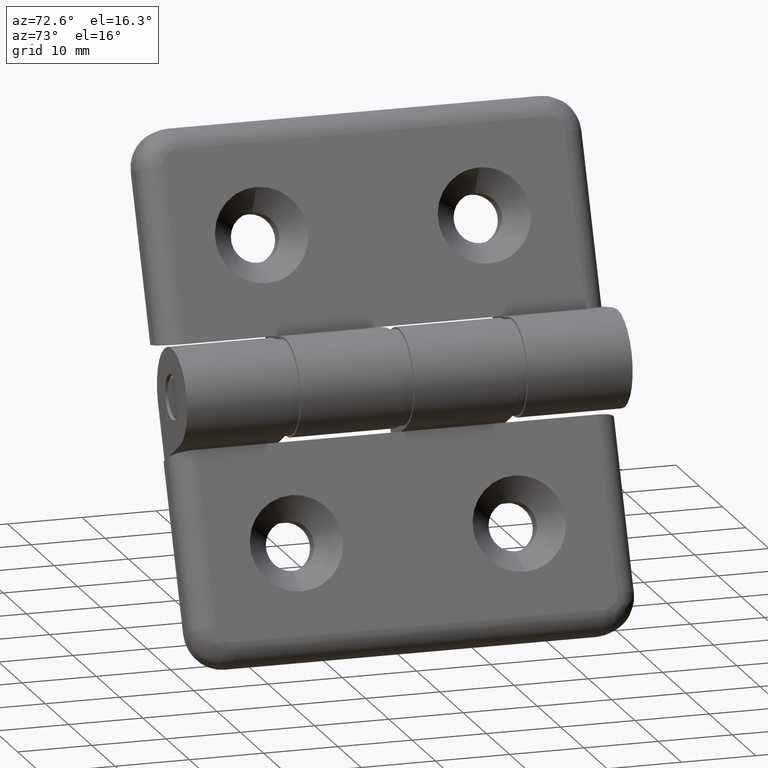
[diagram: clean part render]
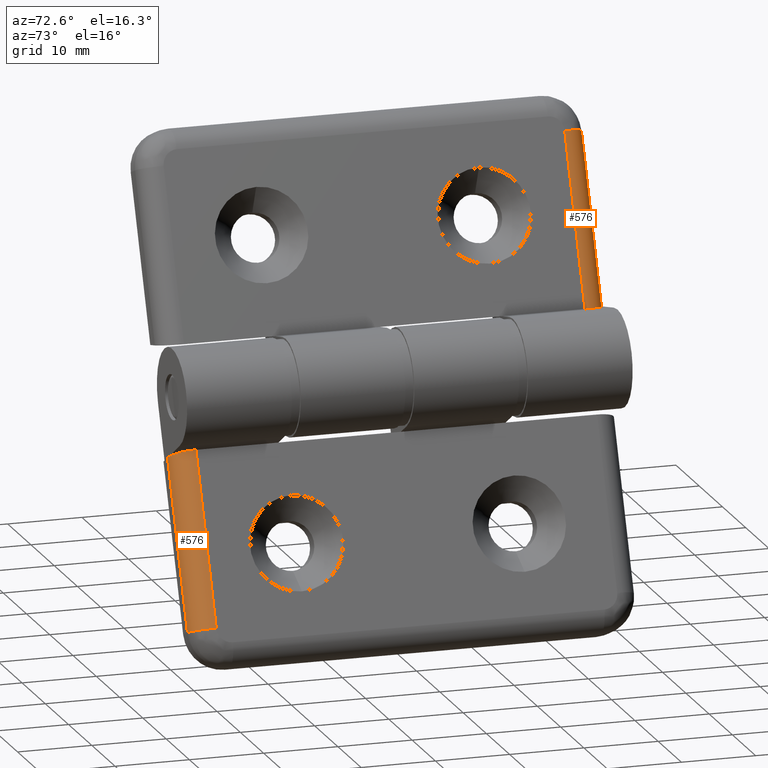
[diagram: same view with one multi-face feature highlighted, each face labeled with its STEP entity id]
A machine part, auxiliary view. The highlighted faces form ONE feature: a constant-radius fillet chain: 2 tangent blend faces with common blend radius 3 mm. The faces share edges in the B-rep.
Their STEP definitions:
[1] entity #576 (Cylinder):
#68=ELLIPSE('',#625,3.03076923076923,3.);
#70=LINE('',#908,#107);
#71=LINE('',#911,#108);
#107=VECTOR('',#717,23.1461538461538);
#108=VECTOR('',#720,22.7153846153846);
#146=CYLINDRICAL_SURFACE('',#623,3.);
#183=FACE_OUTER_BOUND('',#224,.T.);
#224=EDGE_LOOP('',(#436,#437,#438,#439));
#280=CIRCLE('',#624,3.);
#312=VERTEX_POINT('',#904);
#313=VERTEX_POINT('',#905);
#314=VERTEX_POINT('',#907);
#315=VERTEX_POINT('',#909);
#363=EDGE_CURVE('',#312,#313,#280,.T.);
#364=EDGE_CURVE('',#313,#314,#70,.T.);
#365=EDGE_CURVE('',#314,#315,#68,.F.);
#366=EDGE_CURVE('',#315,#312,#71,.T.);
#436=ORIENTED_EDGE('',*,*,#363,.T.);
#437=ORIENTED_EDGE('',*,*,#364,.T.);
#438=ORIENTED_EDGE('',*,*,#365,.T.);
#439=ORIENTED_EDGE('',*,*,#366,.T.);
#576=ADVANCED_FACE('',(#183),#146,.T.);
#623=AXIS2_PLACEMENT_3D('',#903,#713,#714);
#624=AXIS2_PLACEMENT_3D('',#906,#715,#716);
#625=AXIS2_PLACEMENT_3D('',#910,#718,#719);
#713=DIRECTION('center_axis',(-1.,0.,0.));
#714=DIRECTION('ref_axis',(0.,-0.707106781186548,0.707106781186547));
#715=DIRECTION('center_axis',(-1.,0.,0.));
#716=DIRECTION('ref_axis',(0.,-1.,0.));
#717=DIRECTION('',(-1.,0.,0.));
#718=DIRECTION('center_axis',(-0.989847715736041,0.,-0.142131979695432));
#719=DIRECTION('ref_axis',(-0.142131979695432,-1.83158620813795E-16,0.98984771573604));
#720=DIRECTION('',(1.,0.,0.));
#903=CARTESIAN_POINT('Origin',(10.5926638014431,3.,1.99999999999999));
#904=CARTESIAN_POINT('',(22.5,0.,1.99999999999999));
#905=CARTESIAN_POINT('',(22.5,3.,4.99999999999999));
#906=CARTESIAN_POINT('Origin',(22.5,3.,1.99999999999999));
#907=CARTESIAN_POINT('',(-0.646153846153845,3.,4.99999999999999));
#908=CARTESIAN_POINT('',(10.5926638014431,3.,4.99999999999999));
#909=CARTESIAN_POINT('',(-0.215384615384613,0.,1.99999999999999));
#910=CARTESIAN_POINT('Origin',(-0.215384615384613,3.,1.99999999999999));
#911=CARTESIAN_POINT('',(10.5926638014431,0.,1.99999999999999));
[2] entity #576 (Cylinder):
#68=ELLIPSE('',#625,3.03076923076923,3.);
#70=LINE('',#908,#107);
#71=LINE('',#911,#108);
#107=VECTOR('',#717,23.1461538461538);
#108=VECTOR('',#720,22.7153846153846);
#146=CYLINDRICAL_SURFACE('',#623,3.);
#183=FACE_OUTER_BOUND('',#224,.T.);
#224=EDGE_LOOP('',(#436,#437,#438,#439));
#280=CIRCLE('',#624,3.);
#312=VERTEX_POINT('',#904);
#313=VERTEX_POINT('',#905);
#314=VERTEX_POINT('',#907);
#315=VERTEX_POINT('',#909);
#363=EDGE_CURVE('',#312,#313,#280,.T.);
#364=EDGE_CURVE('',#313,#314,#70,.T.);
#365=EDGE_CURVE('',#314,#315,#68,.F.);
#366=EDGE_CURVE('',#315,#312,#71,.T.);
#436=ORIENTED_EDGE('',*,*,#363,.T.);
#437=ORIENTED_EDGE('',*,*,#364,.T.);
#438=ORIENTED_EDGE('',*,*,#365,.T.);
#439=ORIENTED_EDGE('',*,*,#366,.T.);
#576=ADVANCED_FACE('',(#183),#146,.T.);
#623=AXIS2_PLACEMENT_3D('',#903,#713,#714);
#624=AXIS2_PLACEMENT_3D('',#906,#715,#716);
#625=AXIS2_PLACEMENT_3D('',#910,#718,#719);
#713=DIRECTION('center_axis',(-1.,0.,0.));
#714=DIRECTION('ref_axis',(0.,-0.707106781186548,0.707106781186547));
#715=DIRECTION('center_axis',(-1.,0.,0.));
#716=DIRECTION('ref_axis',(0.,-1.,0.));
#717=DIRECTION('',(-1.,0.,0.));
#718=DIRECTION('center_axis',(-0.989847715736041,0.,-0.142131979695432));
#719=DIRECTION('ref_axis',(-0.142131979695432,-1.83158620813795E-16,0.98984771573604));
#720=DIRECTION('',(1.,0.,0.));
#903=CARTESIAN_POINT('Origin',(10.5926638014431,3.,1.99999999999999));
#904=CARTESIAN_POINT('',(22.5,0.,1.99999999999999));
#905=CARTESIAN_POINT('',(22.5,3.,4.99999999999999));
#906=CARTESIAN_POINT('Origin',(22.5,3.,1.99999999999999));
#907=CARTESIAN_POINT('',(-0.646153846153845,3.,4.99999999999999));
#908=CARTESIAN_POINT('',(10.5926638014431,3.,4.99999999999999));
#909=CARTESIAN_POINT('',(-0.215384615384613,0.,1.99999999999999));
#910=CARTESIAN_POINT('Origin',(-0.215384615384613,3.,1.99999999999999));
#911=CARTESIAN_POINT('',(10.5926638014431,0.,1.99999999999999));